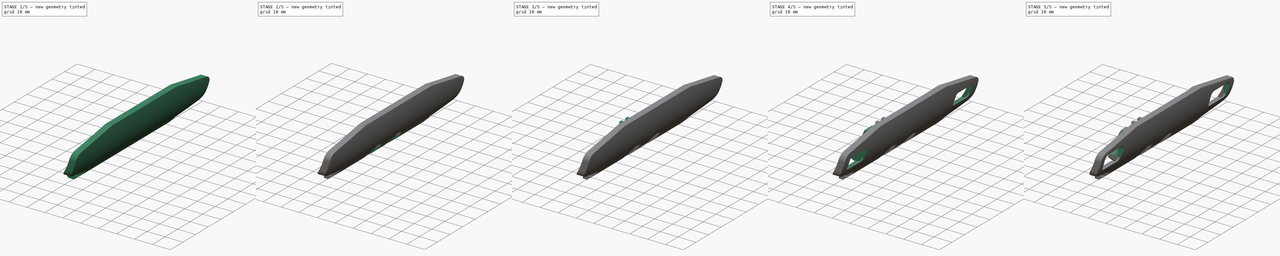
[diagram: build sequence overview — one tinted view per stage of 5, left to right]
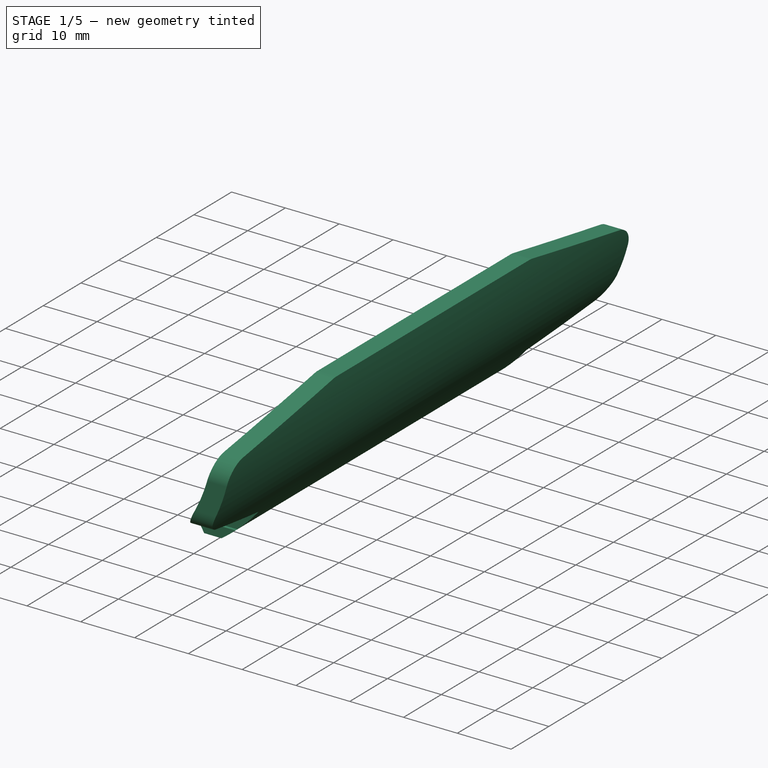
[diagram: stage 1 of 5 — iso view after this stage's code; geometry added in this stage tinted green]
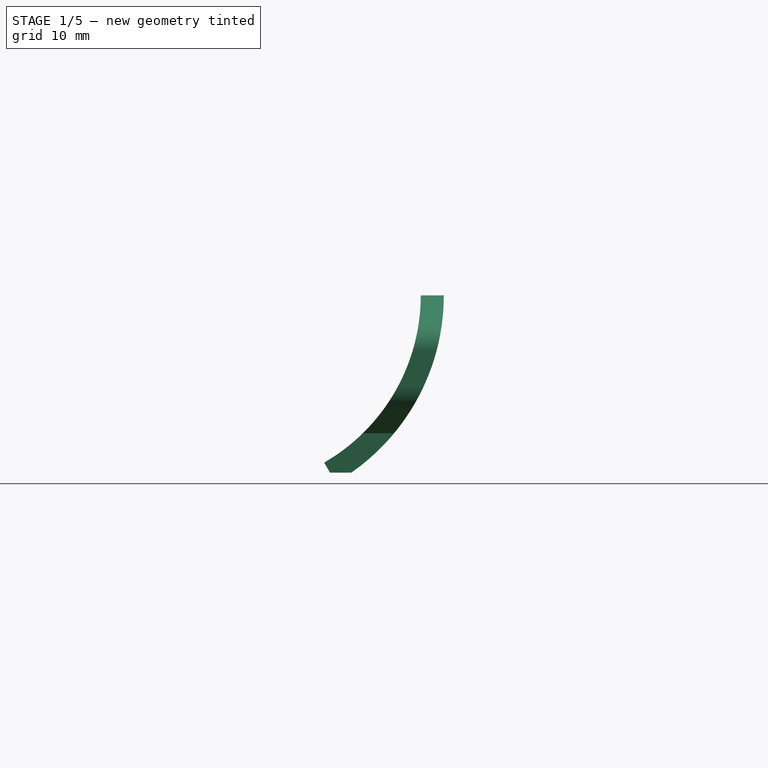
[diagram: stage 1 of 5 — front view after this stage's code; geometry added in this stage tinted green]
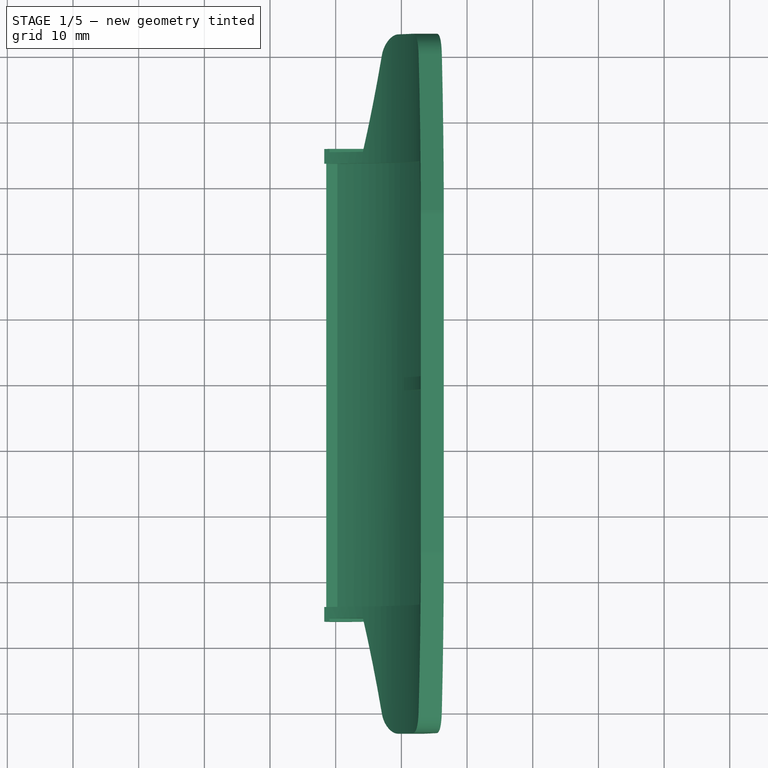
[diagram: stage 1 of 5 — top view after this stage's code; geometry added in this stage tinted green]
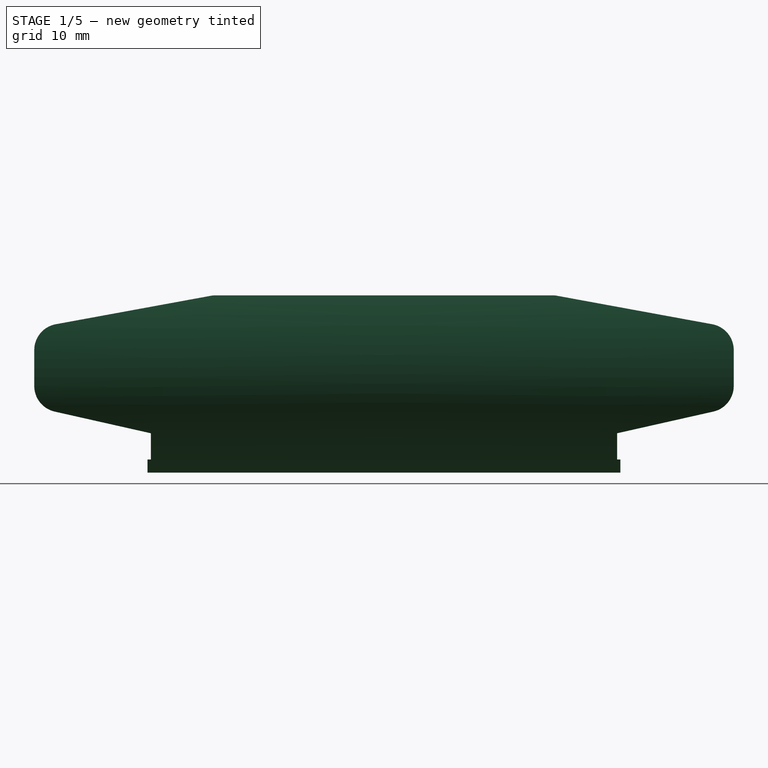
[diagram: stage 1 of 5 — right view after this stage's code; geometry added in this stage tinted green]
FCSTD DOCUMENT  (FreeCAD 0.19R24276 (Git))
Label: Front Bumper
License: All rights reserved
LicenseURL: http://en.wikipedia.org/wiki/All_rights_reserved
objects: Sketcher::SketchObject×20, PartDesign::Pocket×12, PartDesign::Pad×9, PartDesign::Fillet×6, PartDesign::Mirrored×3, PartDesign::Draft×1, PartDesign::Body×1
note: 80 computed .brp shape members not serialized (recipe doc carries the construction recipe); baked Part::Feature solids carry a one-line shape summary decoded from their .brp

FEATURE [Sketcher::SketchObject] Sketch
  FullyConstrained = true
  MapMode = 5
  Placement = pos=(0,0,0) rot=(1,0,0;1.5708rad)
  Support = -> [XZ_Plane]
  sketch-geometry (6):
    g0: ArcOfCircle CenterX=-16.4545 CenterY=21 CenterZ=0 NormalX=0 NormalY=0 NormalZ=1 AngleXU=0 Radius=32.909 StartAngle=5.23599 EndAngle=6.28319
    g1: LineSegment StartX=-16.4545 StartY=21 StartZ=0 EndX=16.4545 EndY=21 EndZ=0
    g2: LineSegment StartX=-16.4545 StartY=21 StartZ=0 EndX=0 EndY=-7.5 EndZ=0
    g3: ArcOfCircle CenterX=-16.4545 CenterY=21 CenterZ=0 NormalX=0 NormalY=0 NormalZ=1 AngleXU=0 Radius=29.409 StartAngle=5.23599 EndAngle=6.28319
    g4: LineSegment StartX=12.9545 StartY=21 StartZ=0 EndX=16.4545 EndY=21 EndZ=0
    g5: LineSegment StartX=-1.75 StartY=-4.46891 StartZ=0 EndX=0 EndY=-7.5 EndZ=0
  constraints (17):
    c: PointOnObject(g0,g-2)
    c: Coincident(g1,g0)
    c: Coincident(g1,g0)
    c: Horizontal(g1)
    c: Coincident(g2,g0)
    c: Coincident(g2,g0)
    c: DistanceY(g0,g-1) = 7.5
    c: DistanceY(g-1,g0) = 21
    c: Angle(g2,g1) = 1.0472
    c: Coincident(g3,g0)
    c: PointOnObject(g3,g2)
    c: PointOnObject(g3,g1)
    c: Coincident(g4,g3)
    c: Coincident(g4,g0)
    c: Coincident(g5,g3)
    c: Coincident(g5,g0)
    c: DistanceX(g3,g0) = 3.5
FEATURE [PartDesign::Pad] Pad
  Direction = (1,1,1)
  Length = 106.5
  Length2 = 100
  Midplane = true
  Placement = pos=(0,0,0) rot=(1,0,0;1.5708rad)
  Profile = -> Sketch
  Type = 0
FEATURE [Sketcher::SketchObject] Sketch001
  ExternalGeometry = -> [Pad]
  FullyConstrained = true
  MapMode = 5
  Placement = pos=(0,0,0) rot=(0.57735,0.57735,0.57735;2.0944rad)
  Support = -> [YZ_Plane]
  sketch-geometry (19):
    g0: LineSegment StartX=26 StartY=21 StartZ=0 EndX=58.25 EndY=21 EndZ=0
    g1: LineSegment StartX=58.25 StartY=21 StartZ=0 EndX=58.25 EndY=-11 EndZ=0
    g2: LineSegment StartX=26 StartY=21 StartZ=0 EndX=53.25 EndY=16 EndZ=0
    g3: LineSegment StartX=53.25 StartY=16 StartZ=0 EndX=53.25 EndY=4 EndZ=0
    g4: LineSegment StartX=53.25 StartY=4 StartZ=0 EndX=35.5 EndY=-3.29e-14 EndZ=0
    g5: LineSegment StartX=35.5 StartY=-3.29e-14 StartZ=0 EndX=35.5 EndY=-4 EndZ=0
    g6: LineSegment StartX=35.5 StartY=-4 StartZ=0 EndX=36 EndY=-4 EndZ=0
    g7: LineSegment StartX=36 StartY=-4 StartZ=0 EndX=36 EndY=-6 EndZ=0
    g8: LineSegment StartX=58.25 StartY=-11 StartZ=0 EndX=-58.25 EndY=-11 EndZ=0
    g9: LineSegment StartX=-58.25 StartY=-11 StartZ=0 EndX=-58.25 EndY=21 EndZ=0
    g10: LineSegment StartX=-58.25 StartY=21 StartZ=0 EndX=-26 EndY=21 EndZ=0
    g11: LineSegment StartX=-26 StartY=21 StartZ=0 EndX=-53.25 EndY=16 EndZ=0
    g12: LineSegment StartX=-53.25 StartY=16 StartZ=0 EndX=-53.25 EndY=4 EndZ=0
    g13: LineSegment StartX=-53.25 StartY=4 StartZ=0 EndX=-35.5 EndY=-3.29e-14 EndZ=0
    g14: LineSegment StartX=-35.5 StartY=-3.29e-14 StartZ=0 EndX=-35.5 EndY=-4 EndZ=0
    g15: LineSegment StartX=-35.5 StartY=-4 StartZ=0 EndX=-36 EndY=-4 EndZ=0
    g16: LineSegment StartX=-36 StartY=-4 StartZ=0 EndX=-36 EndY=-6 EndZ=0
    g17: LineSegment StartX=-36 StartY=-6 StartZ=0 EndX=36 EndY=-6 EndZ=0
    g18: LineSegment StartX=0 StartY=0 StartZ=0 EndX=0 EndY=21 EndZ=0
  constraints (56):
    c: Horizontal(g0)
    c: Coincident(g0,g1)
    c: Vertical(g1)
    c: Coincident(g0,g2)
    c: Vertical(g3)
    c: Coincident(g3,g4)
    c: Coincident(g4,g5)
    c: Vertical(g5)
    c: Coincident(g5,g6)
    c: Horizontal(g6)
    c: Coincident(g6,g7)
    c: Vertical(g7)
    c: Coincident(g1,g8)
    c: Horizontal(g8)
    c: Coincident(g8,g9)
    c: Vertical(g9)
    c: Coincident(g9,g10)
    c: Horizontal(g10)
    c: Coincident(g10,g11)
    c: Coincident(g11,g12)
    c: Coincident(g13,g14)
    c: Vertical(g14)
    c: Coincident(g14,g15)
    c: Horizontal(g15)
    c: Coincident(g15,g16)
    c: Vertical(g16)
    c: Coincident(g16,g17)
    c: Coincident(g17,g7)
    c: Horizontal(g17)
    c: Vertical(g12)
    c: Equal(g2,g11)
    c: Equal(g10,g0)
    c: Equal(g1,g9)
    c: Equal(g12,g3)
    c: Equal(g13,g4)
    c: Equal(g7,g16)
    c: Equal(g15,g6)
    c: Equal(g5,g14)
    c: Coincident(g18,g-1)
    c: PointOnObject(g18,g-2)
    c: Symmetric(g11,g2,g18)
    c: DistanceX(g2,g0) = 5
    c: DistanceX(g16,g7) = 72
    c: DistanceX(g14,g5) = 71
    c: DistanceX(g10,g0) = 52
    c: Tangent(g0,g-3)
    c: Coincident(g2,g3)
    c: PointOnObject(g3,g-4)
    c: DistanceY(g7,g6) = 2
    c: DistanceY(g7,g4) = 6
    c: Coincident(g12,g13)
    c: DistanceY(g1,g7) = 5
    c: DistanceY(g7,g0) = 27
    c: DistanceY(g2,g0) = 5
    c: DistanceY(g7,g3) = 10
    c: PointOnObject(g18,g-3)
FEATURE [PartDesign::Pocket] Pocket
  BaseFeature = -> Pad
  Length = 100
  Length2 = 100
  Midplane = true
  Placement = pos=(0,0,0) rot=(1,0,0;1.5708rad)
  Profile = -> Sketch001
  Reversed = true
  Type = 1
FEATURE [PartDesign::Fillet] Fillet
  Base = -> Pocket [Edge44,Edge43,Edge42,Edge41,Edge40,Edge39]
  BaseFeature = -> Pocket
  Placement = pos=(0,0,0) rot=(1,0,0;1.5708rad)
  Radius = 4
  SupportTransform = false
FEATURE [Sketcher::SketchObject] Sketch002
  ExternalGeometry = -> [Fillet]
  FullyConstrained = true
  MapMode = 5
  Placement = pos=(0,0,0) rot=(0.57735,0.57735,0.57735;2.0944rad)
  Support = -> [YZ_Plane]
  sketch-geometry (11):
    g0: LineSegment StartX=1 StartY=9 StartZ=0 EndX=-1 EndY=9 EndZ=0
    g1: LineSegment StartX=-1 StartY=9 StartZ=0 EndX=-1 EndY=19.5 EndZ=0
    g2: LineSegment StartX=-1 StartY=19.5 StartZ=0 EndX=-23.093 EndY=19.5 EndZ=0
    g3: LineSegment StartX=-23.093 StartY=19.5 StartZ=0 EndX=-33.75 EndY=17.5446 EndZ=0
    g4: LineSegment StartX=-33.75 StartY=17.5446 StartZ=0 EndX=-33.75 EndY=-5 EndZ=0
    g5: LineSegment StartX=-33.75 StartY=-5 StartZ=0 EndX=33.75 EndY=-5 EndZ=0
    g6: LineSegment StartX=1 StartY=9 StartZ=0 EndX=1 EndY=19.5 EndZ=0
    g7: LineSegment StartX=1 StartY=19.5 StartZ=0 EndX=23.093 EndY=19.5 EndZ=0
    g8: LineSegment StartX=23.093 StartY=19.5 StartZ=0 EndX=33.75 EndY=17.5446 EndZ=0
    g9: LineSegment StartX=33.75 StartY=17.5446 StartZ=0 EndX=33.75 EndY=-5 EndZ=0
    g10: LineSegment StartX=0 StartY=0 StartZ=0 EndX=0 EndY=9 EndZ=0
  constraints (32):
    c: Horizontal(g0)
    c: Coincident(g0,g1)
    c: Coincident(g1,g2)
    c: Horizontal(g2)
    c: Coincident(g2,g3)
    c: Coincident(g3,g4)
    c: Coincident(g4,g5)
    c: Horizontal(g5)
    c: Coincident(g6,g0)
    c: Vertical(g6)
    c: Coincident(g7,g6)
    c: Horizontal(g7)
    c: Coincident(g8,g7)
    c: Coincident(g9,g8)
    c: Coincident(g9,g5)
    c: Vertical(g9)
    c: Vertical(g1)
    c: Vertical(g4)
    c: Equal(g7,g2)
    c: Equal(g8,g3)
    c: Equal(g9,g4)
    c: Coincident(g10,g-1)
    c: PointOnObject(g10,g0)
    c: Symmetric(g0,g0,g10)
    c: Equal(g6,g1)
    c: DistanceX(g1,g6) = 2
    c: DistanceX(g-3,g4) = 1.75
    c: DistanceY(g0,g-5) = 12
    c: DistanceY(g7,g-5) = 1.5
    c: Distance(g2,g-6) = 2
    c: Parallel(g3,g-6)
    c: DistanceY(g-4,g4) = 1
FEATURE [PartDesign::Pocket] Pocket001
  BaseFeature = -> Fillet
  Length = 5
  Length2 = 100
  Midplane = true
  Placement = pos=(0,0,0) rot=(1,0,0;1.5708rad)
  Profile = -> Sketch002
  Type = 1
FEATURE [Sketcher::SketchObject] Sketch003
  ExternalGeometry = -> [Pocket001]
  FullyConstrained = false
  MapMode = 5
  Placement = pos=(0,0,0) rot=(1,0,0;1.5708rad)
  Support = -> [XZ_Plane]
  sketch-geometry (5):
    g0: ArcOfCircle CenterX=-16.4545 CenterY=21 CenterZ=0 NormalX=0 NormalY=0 NormalZ=1 AngleXU=0 Radius=32.909 StartAngle=5.37228 EndAngle=6.23759
    g1: LineSegment StartX=16.4203 StartY=19.5 StartZ=0 EndX=14.4181 EndY=19.5 EndZ=0
    g2: ArcOfCircle CenterX=-16.4545 CenterY=21 CenterZ=0 NormalX=0 NormalY=0 NormalZ=1 AngleXU=0 Radius=30.909 StartAngle=5.28372 EndAngle=6.23464
    g3: LineSegment StartX=0.259707 StartY=-5 StartZ=0 EndX=3.71976 EndY=-5 EndZ=0
    g4: LineSegment StartX=10.5921 StartY=6.03851 StartZ=0 EndX=12.3422 EndY=5.07041 EndZ=0
  constraints (13):
    c: Coincident(g0,g-3)
    c: Coincident(g2,g0)
    c: Coincident(g2,g1)
    c: Coincident(g3,g2)
    c: Coincident(g3,g-3)
    c: Horizontal(g3)
    c: Coincident(g0,g1)
    c: Coincident(g0,g3)
    c: Tangent(g-5,g1)
    c: PointOnObject(g4,g2)
    c: PointOnObject(g4,g-3)
    c: PointOnObject(g0,g4)
    c: Distance(g4) = 2
FEATURE [PartDesign::Pad] Pad001
  BaseFeature = -> Pocket001
  Direction = (1,1,1)
  Length = 10
  Length2 = 100
  Placement = pos=(0,0,0) rot=(1,0,0;1.5708rad)
  Profile = -> Sketch003
  Type = 3
  UpToFace = -> Pocket001 [Face18]
FEATURE [PartDesign::Pad] Pad002
  BaseFeature = -> Pad001
  Direction = (1,1,1)
  Length = 10
  Length2 = 100
  Placement = pos=(0,0,0) rot=(1,0,0;1.5708rad)
  Profile = -> Sketch003
  Type = 3
  UpToFace = -> Pad001 [Face26]
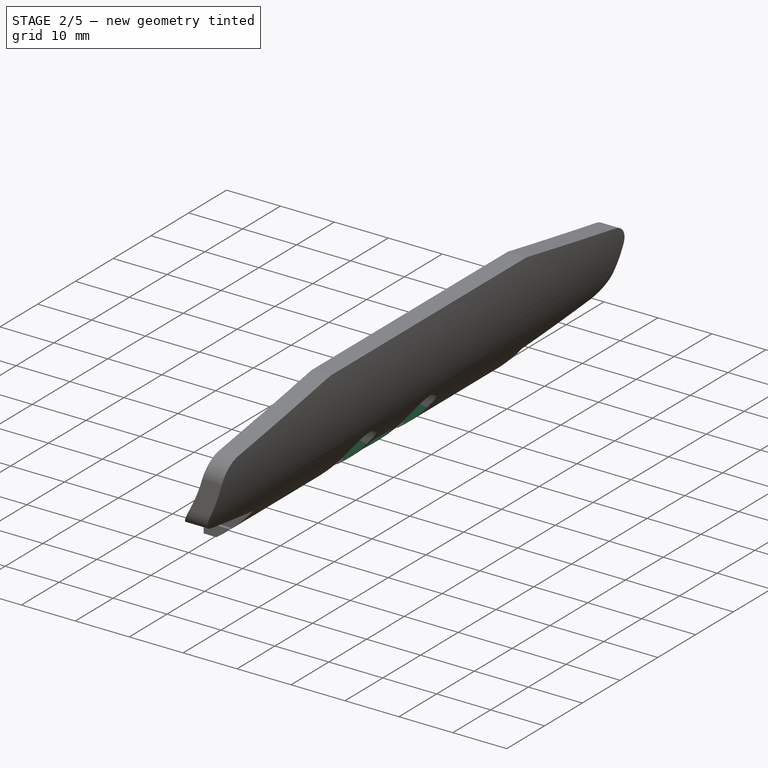
[diagram: stage 2 of 5 — iso view after this stage's code; geometry added in this stage tinted green]
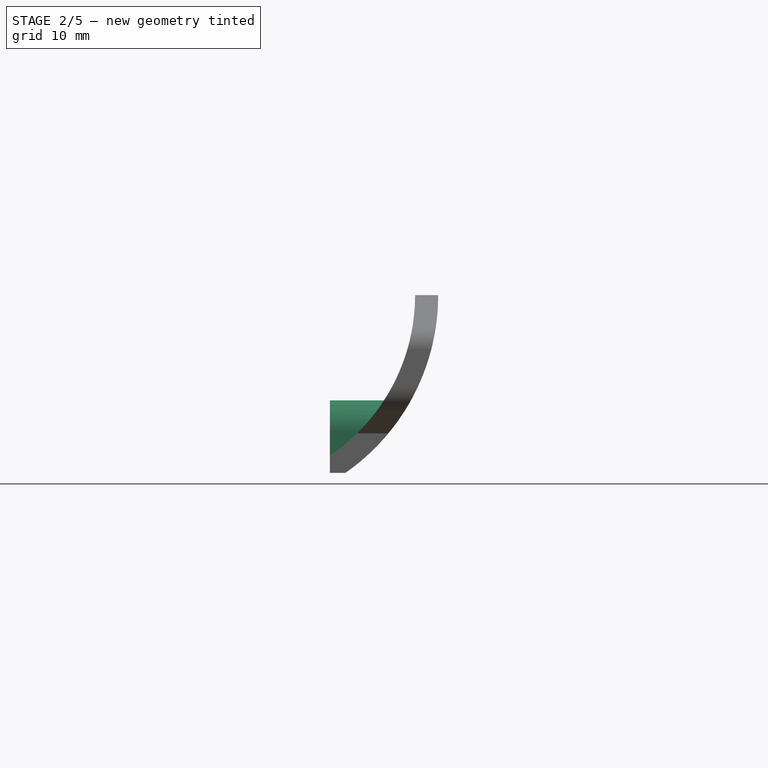
[diagram: stage 2 of 5 — front view after this stage's code; geometry added in this stage tinted green]
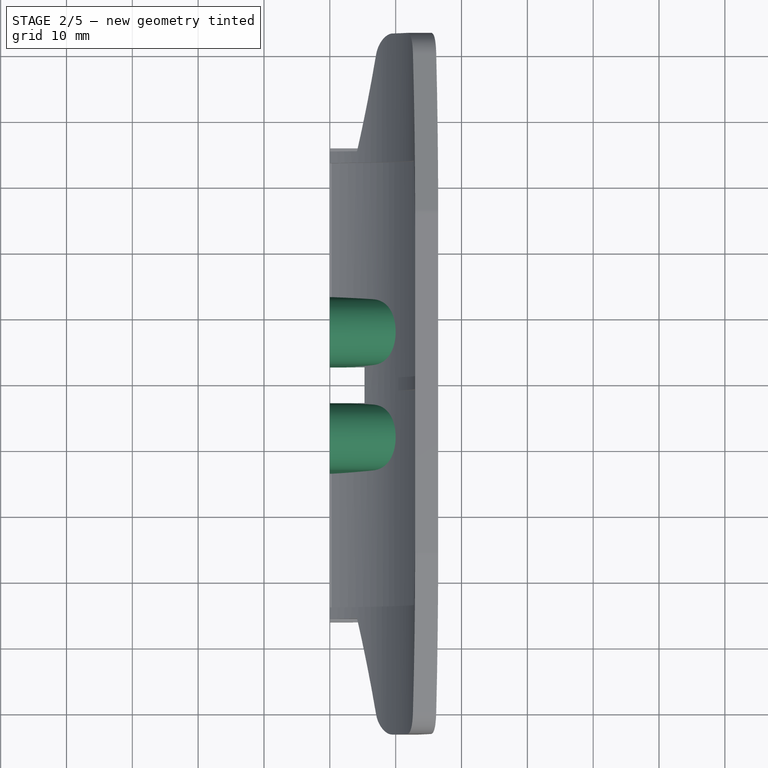
[diagram: stage 2 of 5 — top view after this stage's code; geometry added in this stage tinted green]
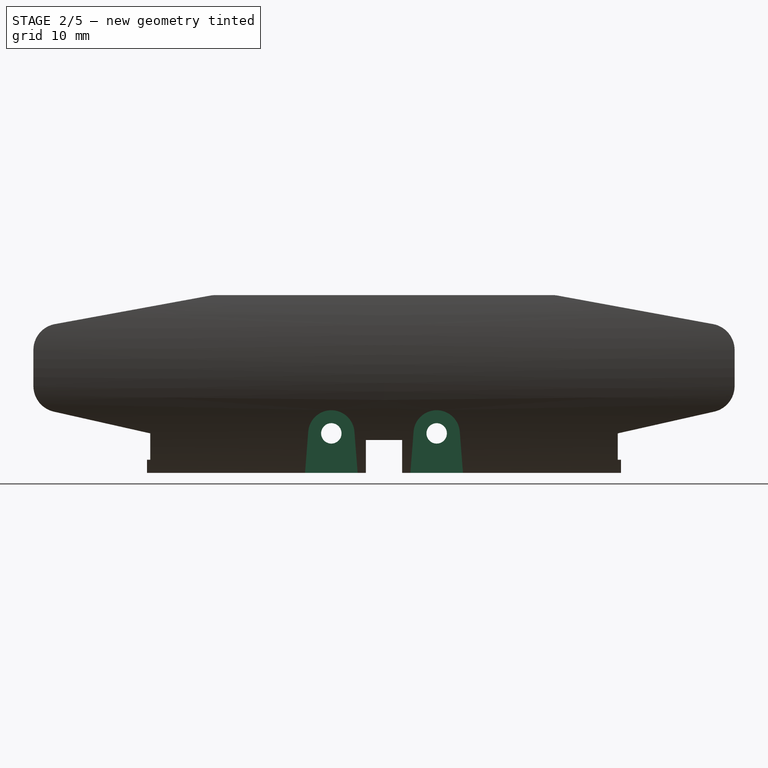
[diagram: stage 2 of 5 — right view after this stage's code; geometry added in this stage tinted green]
FEATURE [Sketcher::SketchObject] Sketch004
  ExternalGeometry = -> [Pad002]
  FullyConstrained = false
  MapMode = 5
  Placement = pos=(0,0,0) rot=(0.57735,0.57735,0.57735;2.0944rad)
  Support = -> [YZ_Plane]
  sketch-geometry (11):
    g0: LineSegment StartX=-3 StartY=0.391165 StartZ=0 EndX=-2.5 EndY=-6 EndZ=0
    g1: LineSegment StartX=-2.5 StartY=-6 StartZ=0 EndX=-13.5 EndY=-6 EndZ=0
    g2: LineSegment StartX=-13.5 StartY=-6 StartZ=0 EndX=-13 EndY=0.391165 EndZ=0
    g3: ArcOfCircle CenterX=-8 CenterY=-6e-16 CenterZ=0 NormalX=0 NormalY=0 NormalZ=1 AngleXU=0 Radius=5.01528 StartAngle=0.078074 EndAngle=3.06352
    g4: LineSegment StartX=0 StartY=0 StartZ=0 EndX=0 EndY=-19.3072 EndZ=0
    g5: LineSegment StartX=3 StartY=0.391165 StartZ=0 EndX=2.5 EndY=-6 EndZ=0
    g6: LineSegment StartX=2.5 StartY=-6 StartZ=0 EndX=13.5 EndY=-6 EndZ=0
    g7: LineSegment StartX=13.5 StartY=-6 StartZ=0 EndX=13 EndY=0.391165 EndZ=0
    g8: ArcOfCircle CenterX=8 CenterY=0 CenterZ=0 NormalX=0 NormalY=0 NormalZ=1 AngleXU=0 Radius=5.01528 StartAngle=0.078074 EndAngle=3.06352
    g9: LineSegment StartX=8 StartY=0 StartZ=0 EndX=8 EndY=-6 EndZ=0
    g10: LineSegment StartX=-8 StartY=-6e-16 StartZ=0 EndX=-8 EndY=-6 EndZ=0
  constraints (26):
    c: Horizontal(g1)
    c: Vertical(g4)
    c: Tangent(g3,g0) = 1.5708
    c: Coincident(g1,g0)
    c: Coincident(g1,g2)
    c: Tangent(g3,g2) = 1.5708
    c: Tangent(g5,g8) = -1.5708
    c: Coincident(g6,g5)
    c: Coincident(g7,g8)
    c: Coincident(g9,g8)
    c: PointOnObject(g9,g6)
    c: Coincident(g10,g3)
    c: PointOnObject(g10,g1)
    c: Vertical(g10)
    c: Symmetric(g5,g0,g4)
    c: Symmetric(g5,g0,g4)
    c: Coincident(g4,g-1)
    c: Symmetric(g2,g7,g4)
    c: Coincident(g6,g7)
    c: Symmetric(g6,g5,g9)
    c: Symmetric(g6,g1,g4)
    c: PointOnObject(g1,g-3)
    c: DistanceX(g6,g6) = 11
    c: DistanceX(g2,g0) = 10
    c: DistanceX(g3,g8) = 16
    c: DistanceY(g-1,g8) = 0
FEATURE [Sketcher::SketchObject] Sketch005
  FullyConstrained = true
  MapMode = 5
  Support = -> [XY_Plane]
  sketch-geometry (4):
    g0: LineSegment StartX=0 StartY=-40 StartZ=0 EndX=-5 EndY=-40 EndZ=0
    g1: LineSegment StartX=-5 StartY=-40 StartZ=0 EndX=-5 EndY=40 EndZ=0
    g2: LineSegment StartX=-5 StartY=40 StartZ=0 EndX=0 EndY=40 EndZ=0
    g3: LineSegment StartX=0 StartY=40 StartZ=0 EndX=0 EndY=-40 EndZ=0
  constraints (11):
    c: Coincident(g0,g1)
    c: Coincident(g1,g2)
    c: Coincident(g2,g3)
    c: Coincident(g3,g0)
    c: Horizontal(g0)
    c: Horizontal(g2)
    c: Vertical(g3)
    c: PointOnObject(g0,g-2)
    c: Symmetric(g1,g0,g-1)
    c: DistanceX(g1,g2) = 5
    c: DistanceY(g1,g1) = 80
FEATURE [PartDesign::Pocket] Pocket002
  BaseFeature = -> Pad002
  Length = 5
  Length2 = 100
  Placement = pos=(0,0,0) rot=(1,0,0;1.5708rad)
  Profile = -> Sketch005
  Type = 1
FEATURE [PartDesign::Pad] Pad003
  BaseFeature = -> Pocket002
  Direction = (1,1,1)
  Length = 10
  Length2 = 100
  Offset = -5
  Placement = pos=(0,0,0) rot=(1,0,0;1.5708rad)
  Profile = -> Sketch004
  Type = 0
FEATURE [Sketcher::SketchObject] Sketch006
  ExternalGeometry = -> [Pad003]
  FullyConstrained = true
  MapMode = 5
  Placement = pos=(0,0,0) rot=(1,0,0;1.5708rad)
  Support = -> [XZ_Plane]
  sketch-geometry (3):
    g0: LineSegment StartX=2.36041 StartY=-6 StartZ=0 EndX=10 EndY=-6 EndZ=0
    g1: LineSegment StartX=10 StartY=-6 StartZ=0 EndX=10 EndY=1.42552 EndZ=0
    g2: ArcOfCircle CenterX=-16.4545 CenterY=21 CenterZ=0 NormalX=0 NormalY=0 NormalZ=1 AngleXU=0 Radius=32.909 StartAngle=5.321 EndAngle=5.64616
  constraints (7):
    c: Coincident(g0,g-5)
    c: Coincident(g0,g-6)
    c: Coincident(g1,g0)
    c: Coincident(g1,g-7)
    c: Coincident(g2,g0)
    c: Coincident(g2,g1)
    c: Tangent(g2,g-4)
FEATURE [PartDesign::Pocket] Pocket003
  BaseFeature = -> Pad003
  Length = 5
  Length2 = 100
  Midplane = true
  Placement = pos=(0,0,0) rot=(1,0,0;1.5708rad)
  Profile = -> Sketch006
  Type = 1
FEATURE [Sketcher::SketchObject] Sketch007
  ExternalGeometry = -> [Pocket003]
  FullyConstrained = true
  MapMode = 5
  Placement = pos=(0,0,0) rot=(0.57735,0.57735,0.57735;2.0944rad)
  Support = -> [YZ_Plane]
  sketch-geometry (8):
    g0: LineSegment StartX=-4.49543 StartY=0.274196 StartZ=0 EndX=-4.00458 EndY=-6 EndZ=0
    g1: LineSegment StartX=-4.00458 StartY=-6 StartZ=0 EndX=-11.9954 EndY=-6 EndZ=0
    g2: LineSegment StartX=-11.9954 StartY=-6 StartZ=0 EndX=-11.5046 EndY=0.274172 EndZ=0
    g3: LineSegment StartX=11.5046 StartY=0.274173 StartZ=0 EndX=11.9954 EndY=-6 EndZ=0
    g4: LineSegment StartX=11.9954 StartY=-6 StartZ=0 EndX=4.00458 EndY=-6 EndZ=0
    g5: LineSegment StartX=4.00458 StartY=-6 StartZ=0 EndX=4.49543 EndY=0.274173 EndZ=0
    g6: ArcOfCircle CenterX=-8 CenterY=6.5e-15 CenterZ=0 NormalX=0 NormalY=0 NormalZ=1 AngleXU=0 Radius=3.51528 StartAngle=0.0780805 EndAngle=3.06352
    g7: ArcOfCircle CenterX=8 CenterY=-7.1e-15 CenterZ=0 NormalX=0 NormalY=0 NormalZ=1 AngleXU=0 Radius=3.51528 StartAngle=0.078074 EndAngle=3.06352
  constraints (22):
    c: Coincident(g0,g1)
    c: Coincident(g1,g2)
    c: Coincident(g3,g4)
    c: Coincident(g4,g5)
    c: Coincident(g6,g0)
    c: Coincident(g6,g2)
    c: Coincident(g7,g5)
    c: Coincident(g7,g3)
    c: Coincident(g-3,g6)
    c: Coincident(g7,g-7)
    c: Tangent(g2,g6)
    c: Tangent(g0,g6)
    c: Tangent(g5,g7)
    c: Tangent(g3,g7)
    c: Tangent(g1,g4)
    c: Tangent(g4,g-9)
    c: Parallel(g-5,g0)
    c: Parallel(g2,g-4)
    c: Parallel(g5,g-6)
    c: Parallel(g3,g-8)
    c: Distance(g3,g-8) = 1.5
    c: Distance(g0,g-5) = 1.5
FEATURE [PartDesign::Pocket] Pocket004
  BaseFeature = -> Pocket003
  Length = 9
  Length2 = 100
  Midplane = true
  Placement = pos=(0,0,0) rot=(1,0,0;1.5708rad)
  Profile = -> Sketch007
  Type = 1
FEATURE [Sketcher::SketchObject] Sketch008
  ExternalGeometry = -> [Pocket004]
  FullyConstrained = true
  MapMode = 5
  Placement = pos=(0,0,0) rot=(0.57735,0.57735,0.57735;2.0944rad)
  Support = -> [YZ_Plane]
  sketch-geometry (10):
    g0: LineSegment StartX=11.5046 StartY=0.274191 StartZ=0 EndX=11.9954 EndY=-6 EndZ=0
    g1: LineSegment StartX=11.9954 StartY=-6 StartZ=0 EndX=4.00458 EndY=-6 EndZ=0
    g2: LineSegment StartX=4.00458 StartY=-6 StartZ=0 EndX=4.49543 EndY=0.274154 EndZ=0
    g3: LineSegment StartX=-4.49543 StartY=0.274196 StartZ=0 EndX=-4.0045 EndY=-6 EndZ=0
    g4: LineSegment StartX=-4.0045 StartY=-6 StartZ=0 EndX=-11.9954 EndY=-6 EndZ=0
    g5: LineSegment StartX=-11.9954 StartY=-6 StartZ=0 EndX=-11.5046 EndY=0.274172 EndZ=0
    g6: ArcOfCircle CenterX=-8 CenterY=0 CenterZ=0 NormalX=0 NormalY=0 NormalZ=1 AngleXU=0 Radius=3.51528 StartAngle=0.0780805 EndAngle=3.06352
    g7: ArcOfCircle CenterX=8 CenterY=-4.4e-15 CenterZ=0 NormalX=0 NormalY=0 NormalZ=1 AngleXU=0 Radius=3.51528 StartAngle=0.0780792 EndAngle=3.06352
    g8: Circle CenterX=8 CenterY=-4.4e-15 CenterZ=0 NormalX=0 NormalY=0 NormalZ=1 AngleXU=0 Radius=1.55
    g9: Circle CenterX=-8 CenterY=0 CenterZ=0 NormalX=0 NormalY=0 NormalZ=1 AngleXU=0 Radius=1.55
  constraints (23):
    c: PointOnObject(g0,g-8)
    c: Coincident(g0,g1)
    c: Coincident(g1,g2)
    c: Coincident(g3,g4)
    c: Coincident(g4,g5)
    c: PointOnObject(g6,g5)
    c: Coincident(g3,g-4)
    c: Coincident(g6,g3)
    c: Tangent(g3,g6)
    c: Tangent(g5,g6)
    c: Coincident(g6,g-4)
    c: Coincident(g-5,g5)
    c: Tangent(g4,g-6)
    c: Coincident(g-8,g7)
    c: Coincident(g7,g2)
    c: Tangent(g1,g-6)
    c: Tangent(g-7,g2)
    c: Coincident(g7,g0)
    c: Tangent(g-9,g0)
    c: Equal(g8,g9)
    c: Radius(g9) = 1.55
    c: Coincident(g8,g7)
    c: Coincident(g9,g6)
FEATURE [PartDesign::Pad] Pad004
  BaseFeature = -> Pocket004
  Direction = (1,1,1)
  Length = 2
  Length2 = 100
  Placement = pos=(0,0,0) rot=(1,0,0;1.5708rad)
  Profile = -> Sketch008
  Type = 0
FEATURE [Sketcher::SketchObject] Sketch009
  ExternalGeometry = -> [Pad004]
  FullyConstrained = true
  MapMode = 5
  Placement = pos=(0,0,0) rot=(0.57735,0.57735,0.57735;2.0944rad)
  Support = -> [YZ_Plane]
  sketch-geometry (4):
    g0: LineSegment StartX=-2.75 StartY=-6 StartZ=0 EndX=2.75 EndY=-6 EndZ=0
    g1: LineSegment StartX=2.75 StartY=-6 StartZ=0 EndX=2.75 EndY=-1 EndZ=0
    g2: LineSegment StartX=2.75 StartY=-1 StartZ=0 EndX=-2.75 EndY=-1 EndZ=0
    g3: LineSegment StartX=-2.75 StartY=-1 StartZ=0 EndX=-2.75 EndY=-6 EndZ=0
  constraints (11):
    c: Coincident(g0,g1)
    c: Coincident(g1,g2)
    c: Coincident(g2,g3)
    c: Coincident(g3,g0)
    c: Horizontal(g2)
    c: Vertical(g1)
    c: Vertical(g3)
    c: Symmetric(g0,g0,g-2)
    c: PointOnObject(g0,g-3)
    c: DistanceY(g3,g3) = 5
    c: DistanceX(g2,g2) = 5.5
FEATURE [PartDesign::Pocket] Pocket005
  BaseFeature = -> Pad004
  Length = 5
  Length2 = 100
  Placement = pos=(0,0,0) rot=(1,0,0;1.5708rad)
  Profile = -> Sketch009
  Reversed = true
  Type = 1
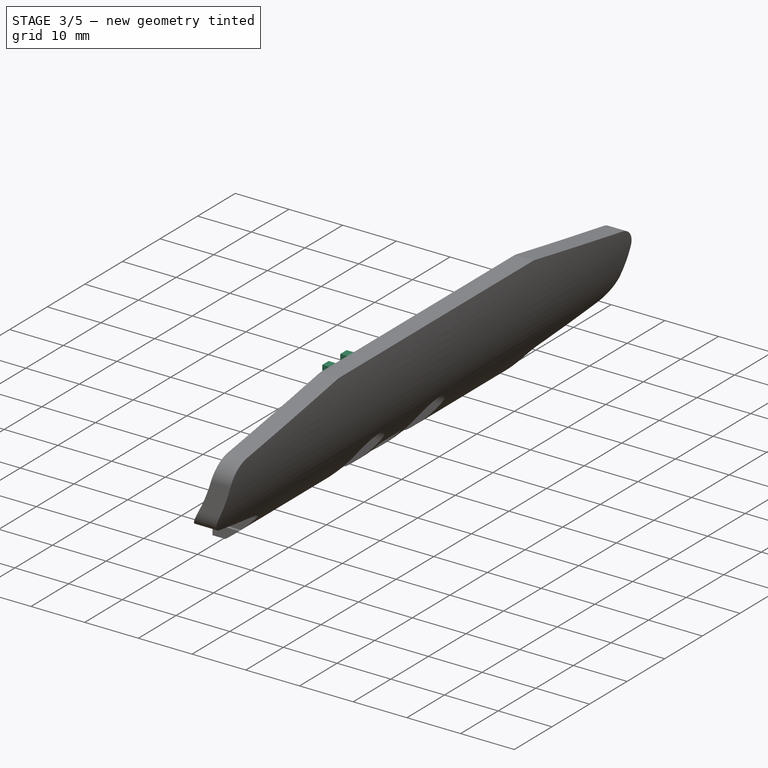
[diagram: stage 3 of 5 — iso view after this stage's code; geometry added in this stage tinted green]
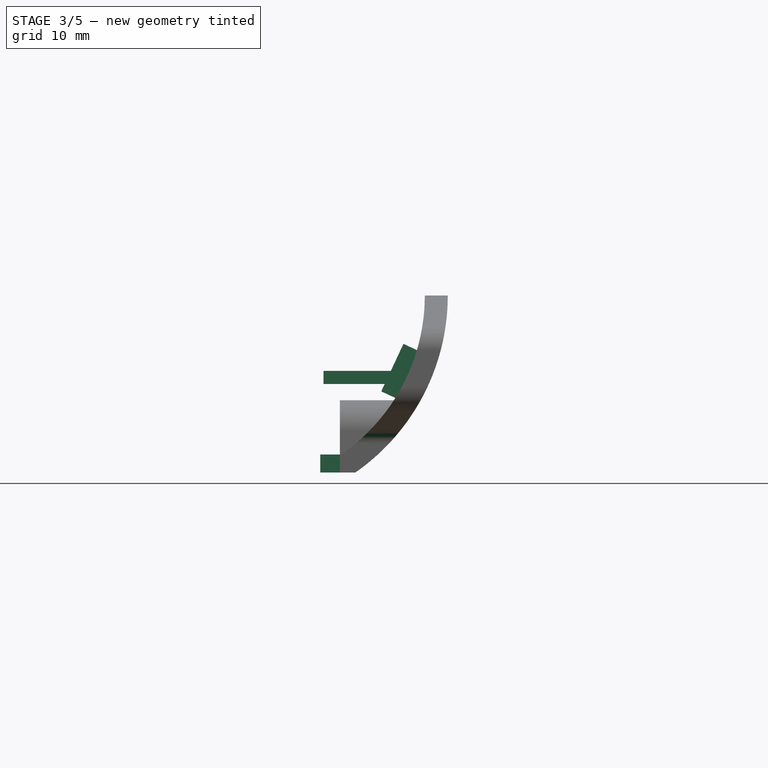
[diagram: stage 3 of 5 — front view after this stage's code; geometry added in this stage tinted green]
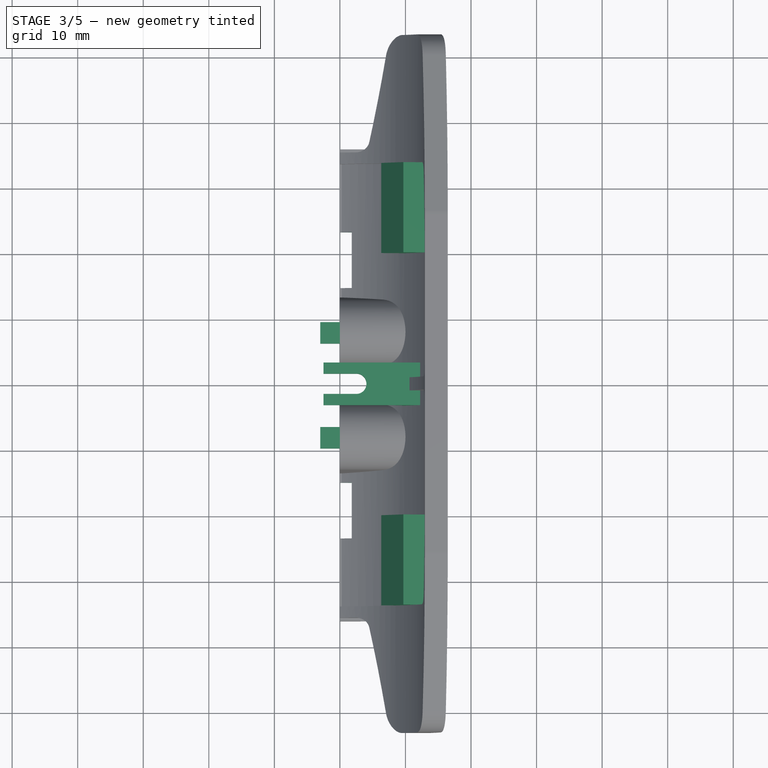
[diagram: stage 3 of 5 — top view after this stage's code; geometry added in this stage tinted green]
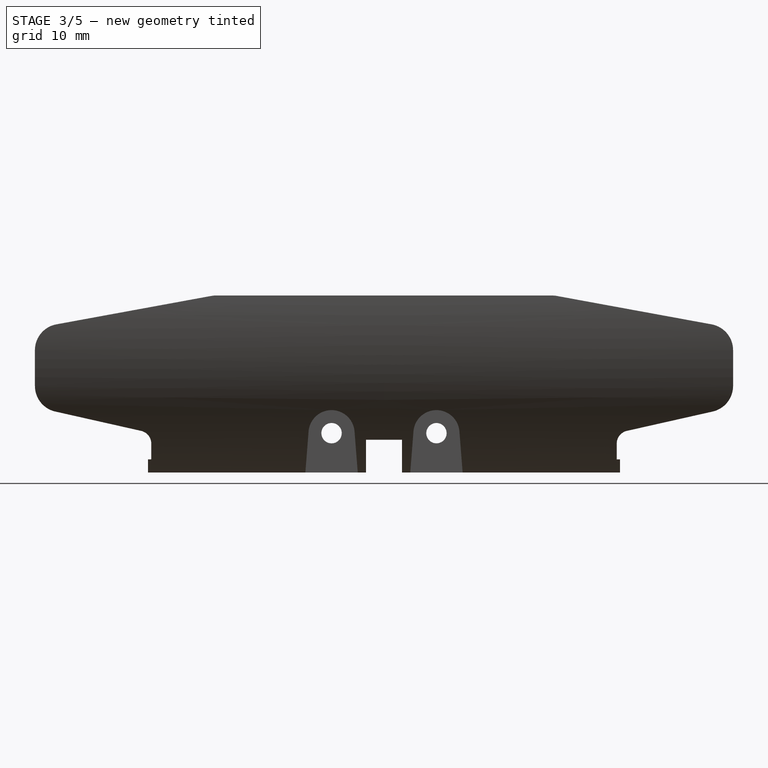
[diagram: stage 3 of 5 — right view after this stage's code; geometry added in this stage tinted green]
FEATURE [Sketcher::SketchObject] Sketch010
  FullyConstrained = true
  MapMode = 5
  Support = -> [XY_Plane]
  sketch-geometry (8):
    g0: LineSegment StartX=0 StartY=14.85 StartZ=0 EndX=1.8 EndY=14.85 EndZ=0
    g1: LineSegment StartX=1.8 StartY=14.85 StartZ=0 EndX=1.8 EndY=23.35 EndZ=0
    g2: LineSegment StartX=1.8 StartY=23.35 StartZ=0 EndX=0 EndY=23.35 EndZ=0
    g3: LineSegment StartX=0 StartY=23.35 StartZ=0 EndX=0 EndY=14.85 EndZ=0
    g4: LineSegment StartX=0 StartY=-14.85 StartZ=0 EndX=1.8 EndY=-14.85 EndZ=0
    g5: LineSegment StartX=1.8 StartY=-14.85 StartZ=0 EndX=1.8 EndY=-23.35 EndZ=0
    g6: LineSegment StartX=1.8 StartY=-23.35 StartZ=0 EndX=0 EndY=-23.35 EndZ=0
    g7: LineSegment StartX=0 StartY=-23.35 StartZ=0 EndX=0 EndY=-14.85 EndZ=0
  constraints (22):
    c: Coincident(g0,g1)
    c: Coincident(g1,g2)
    c: Coincident(g2,g3)
    c: Coincident(g3,g0)
    c: Horizontal(g0)
    c: Horizontal(g2)
    c: Vertical(g3)
    c: PointOnObject(g0,g-2)
    c: Coincident(g4,g5)
    c: Coincident(g5,g6)
    c: Coincident(g6,g7)
    c: Coincident(g7,g4)
    c: Horizontal(g4)
    c: Horizontal(g6)
    c: Vertical(g7)
    c: PointOnObject(g4,g-2)
    c: Tangent(g5,g1)
    c: Symmetric(g4,g0,g-1)
    c: DistanceY(g4,g0) = 29.7
    c: DistanceY(g6,g2) = 46.7
    c: DistanceX(g2,g1) = 1.8
    c: Symmetric(g1,g5,g-1)
FEATURE [PartDesign::Pocket] Pocket006
  BaseFeature = -> Pocket005
  Length = 5
  Length2 = 100
  Placement = pos=(0,0,0) rot=(1,0,0;1.5708rad)
  Profile = -> Sketch010
  Type = 1
FEATURE [Sketcher::SketchObject] Sketch011
  ExternalGeometry = -> [Pocket006]
  FullyConstrained = true
  MapMode = 5
  Placement = pos=(0,0,0) rot=(0.57735,0.57735,0.57735;2.0944rad)
  Support = -> [YZ_Plane]
  sketch-geometry (8):
    g0: LineSegment StartX=-6.375 StartY=-6 StartZ=0 EndX=-9.625 EndY=-6 EndZ=0
    g1: LineSegment StartX=-9.625 StartY=-6 StartZ=0 EndX=-9.625 EndY=-3.25 EndZ=0
    g2: LineSegment StartX=-9.625 StartY=-3.25 StartZ=0 EndX=-6.375 EndY=-3.25 EndZ=0
    g3: LineSegment StartX=-6.375 StartY=-3.25 StartZ=0 EndX=-6.375 EndY=-6 EndZ=0
    g4: LineSegment StartX=6.375 StartY=-6 StartZ=0 EndX=9.625 EndY=-6 EndZ=0
    g5: LineSegment StartX=9.625 StartY=-6 StartZ=0 EndX=9.625 EndY=-3.25 EndZ=0
    g6: LineSegment StartX=9.625 StartY=-3.25 StartZ=0 EndX=6.375 EndY=-3.25 EndZ=0
    g7: LineSegment StartX=6.375 StartY=-3.25 StartZ=0 EndX=6.375 EndY=-6 EndZ=0
  constraints (21):
    c: Coincident(g0,g1)
    c: Coincident(g1,g2)
    c: Coincident(g2,g3)
    c: Coincident(g3,g0)
    c: Horizontal(g2)
    c: Vertical(g1)
    c: Vertical(g3)
    c: Coincident(g4,g5)
    c: Coincident(g5,g6)
    c: Coincident(g6,g7)
    c: Coincident(g7,g4)
    c: Vertical(g5)
    c: Vertical(g7)
    c: Tangent(g2,g6)
    c: Tangent(g4,g0)
    c: Symmetric(g0,g4,g-2)
    c: Symmetric(g0,g4,g-2)
    c: DistanceX(g0,g4) = 12.75
    c: DistanceX(g0,g4) = 19.25
    c: PointOnObject(g0,g-3)
    c: DistanceY(g3,g3) = 2.75
FEATURE [PartDesign::Pad] Pad005
  BaseFeature = -> Pocket006
  Direction = (1,1,1)
  Length = 3
  Length2 = 100
  Placement = pos=(0,0,0) rot=(1,0,0;1.5708rad)
  Profile = -> Sketch011
  Reversed = true
  Type = 0
FEATURE [Sketcher::SketchObject] Sketch012
  ExternalGeometry = -> [Pad005]
  FullyConstrained = true
  MapMode = 5
  Placement = pos=(0,0,0) rot=(1,0,0;1.5708rad)
  Support = -> [XZ_Plane]
  sketch-geometry (6):
    g0: LineSegment StartX=13 StartY=9.5 StartZ=0 EndX=-2.5 EndY=9.5 EndZ=0
    g1: LineSegment StartX=-2.5 StartY=9.5 StartZ=0 EndX=-2.5 EndY=7.5 EndZ=0
    g2: LineSegment StartX=-2.5 StartY=7.5 StartZ=0 EndX=8.00001 EndY=7.5 EndZ=0
    g3: LineSegment StartX=13 StartY=9.5 StartZ=0 EndX=9.5 EndY=3.89883 EndZ=0
    g4: LineSegment StartX=9.5 StartY=3.89883 StartZ=0 EndX=9.5 EndY=6.00001 EndZ=0
    g5: ArcOfCircle CenterX=8 CenterY=6 CenterZ=0 NormalX=0 NormalY=0 NormalZ=1 AngleXU=0 Radius=1.5 StartAngle=6.77249e-06 EndAngle=1.57079
  constraints (19):
    c: Horizontal(g0)
    c: Coincident(g0,g1)
    c: Vertical(g1)
    c: Coincident(g1,g2)
    c: Horizontal(g2)
    c: Coincident(g0,g3)
    c: Coincident(g3,g4)
    c: Vertical(g4)
    c: Coincident(g5,g4)
    c: Coincident(g5,g2)
    c: Tangent(g5,g2)
    c: Tangent(g4,g5)
    c: Angle(g0,g3) = 1.01229
    c: DistanceX(g0,g-1) = 2.5
    c: DistanceY(g1,g1) = 2
    c: DistanceY(g-3,g0) = 15.5
    c: DistanceX(g0,g0) = 15.5
    c: DistanceX(g-1,g3) = 9.5
    c: Radius(g5) = 1.5
FEATURE [PartDesign::Pad] Pad006
  BaseFeature = -> Pad005
  Direction = (1,1,1)
  Length = 6.5
  Length2 = 100
  Midplane = true
  Placement = pos=(0,0,0) rot=(1,0,0;1.5708rad)
  Profile = -> Sketch012
  Type = 0
FEATURE [Sketcher::SketchObject] Sketch013
  ExternalGeometry = -> [Pad006]
  FullyConstrained = true
  MapMode = 5
  Placement = pos=(0,6.3e-15,9.5) rot=(0,0,1;3.14159rad)
  Support = -> [Pad006]
  sketch-geometry (4):
    g0: ArcOfCircle CenterX=-2.5 CenterY=0 CenterZ=0 NormalX=0 NormalY=0 NormalZ=1 AngleXU=0 Radius=1.55 StartAngle=1.5708 EndAngle=4.71239
    g1: ArcOfCircle CenterX=3.5 CenterY=-1e-16 CenterZ=0 NormalX=0 NormalY=0 NormalZ=1 AngleXU=0 Radius=1.55 StartAngle=4.71239 EndAngle=7.85398
    g2: LineSegment StartX=-2.5 StartY=-1.55 StartZ=0 EndX=3.5 EndY=-1.55 EndZ=0
    g3: LineSegment StartX=-2.5 StartY=1.55 StartZ=0 EndX=3.5 EndY=1.55 EndZ=0
  constraints (10):
    c: Tangent(g0,g3) = 1.5708
    c: Tangent(g0,g2) = -1.5708
    c: Tangent(g2,g1) = -1.5708
    c: Tangent(g3,g1) = 1.5708
    c: Horizontal(g2)
    c: Equal(g0,g1)
    c: PointOnObject(g0,g-1)
    c: DistanceX(g0,g-3) = 5
    c: DistanceX(g0,g1) = 6
    c: Radius(g1) = 1.55
FEATURE [PartDesign::Pocket] Pocket007
  BaseFeature = -> Pad006
  Length = 5
  Length2 = 100
  Placement = pos=(0,0,0) rot=(1,0,0;1.5708rad)
  Profile = -> Sketch013
  Type = 2
FEATURE [Sketcher::SketchObject] Sketch014
  FullyConstrained = true
  MapMode = 5
  Placement = pos=(7.5e-15,33.75,-2.023e-13) rot=(1,0,0;1.5708rad)
  Support = -> [Pocket007]
  sketch-geometry (4):
    g0: LineSegment StartX=6.31 StartY=6.375 StartZ=0 EndX=9.69095 EndY=13.6255 EndZ=0
    g1: LineSegment StartX=9.69095 StartY=13.6255 StartZ=0 EndX=13.7693 EndY=11.7237 EndZ=0
    g2: LineSegment StartX=13.7693 StartY=11.7237 StartZ=0 EndX=10.3884 EndY=4.47322 EndZ=0
    g3: LineSegment StartX=10.3884 StartY=4.47322 StartZ=0 EndX=6.31 EndY=6.375 EndZ=0
  constraints (12):
    c: Coincident(g0,g1)
    c: Coincident(g1,g2)
    c: Coincident(g2,g3)
    c: Coincident(g3,g0)
    c: Parallel(g2,g0)
    c: Parallel(g1,g3)
    c: Perpendicular(g0,g1)
    c: Angle(g0,g-2) = 0.436332
    c: Distance(g1) = 4.5
    c: Distance(g2) = 8
    c: DistanceY(g-1,g0) = 6.375
    c: DistanceX(g-1,g0) = 6.31
FEATURE [PartDesign::Pad] Pad007
  BaseFeature = -> Pocket007
  Direction = (1,1,1)
  Length = 13.75
  Length2 = 100
  Placement = pos=(0,0,0) rot=(1,0,0;1.5708rad)
  Profile = -> Sketch014
  Type = 0
FEATURE [PartDesign::Mirrored] Mirrored
  BaseFeature = -> Pad007
  MirrorPlane = -> XZ_Plane
  Originals = -> [Pad007]
  Placement = pos=(0,0,0) rot=(1,0,0;1.5708rad)
FEATURE [PartDesign::Fillet] Fillet001
  Base = -> Mirrored [Edge95,Edge94,Edge77,Edge75,Edge91,Edge68,Edge56,Edge114]
  BaseFeature = -> Mirrored
  Placement = pos=(0,0,0) rot=(1,0,0;1.5708rad)
  Radius = 2
  SupportTransform = false
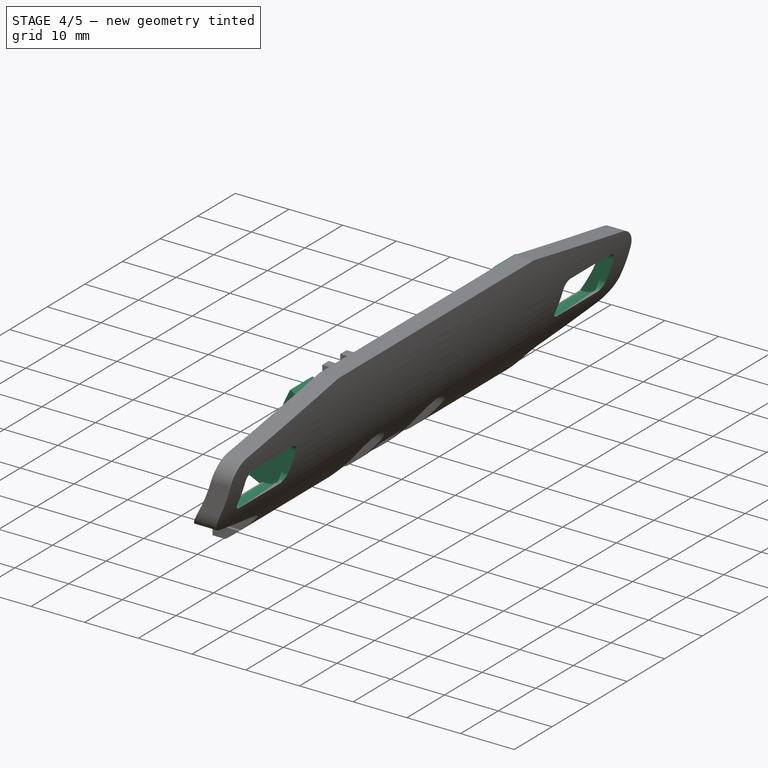
[diagram: stage 4 of 5 — iso view after this stage's code; geometry added in this stage tinted green]
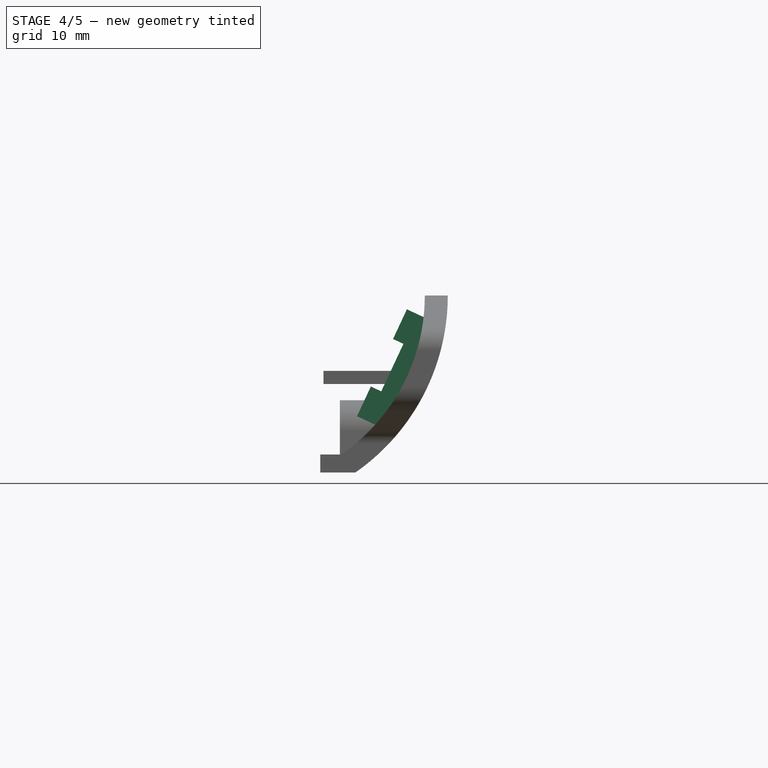
[diagram: stage 4 of 5 — front view after this stage's code; geometry added in this stage tinted green]
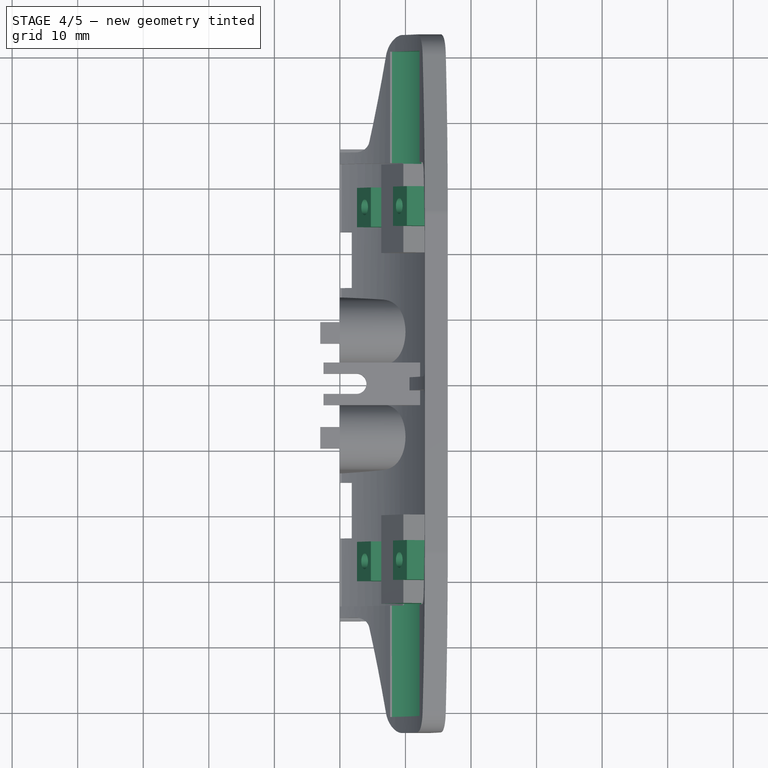
[diagram: stage 4 of 5 — top view after this stage's code; geometry added in this stage tinted green]
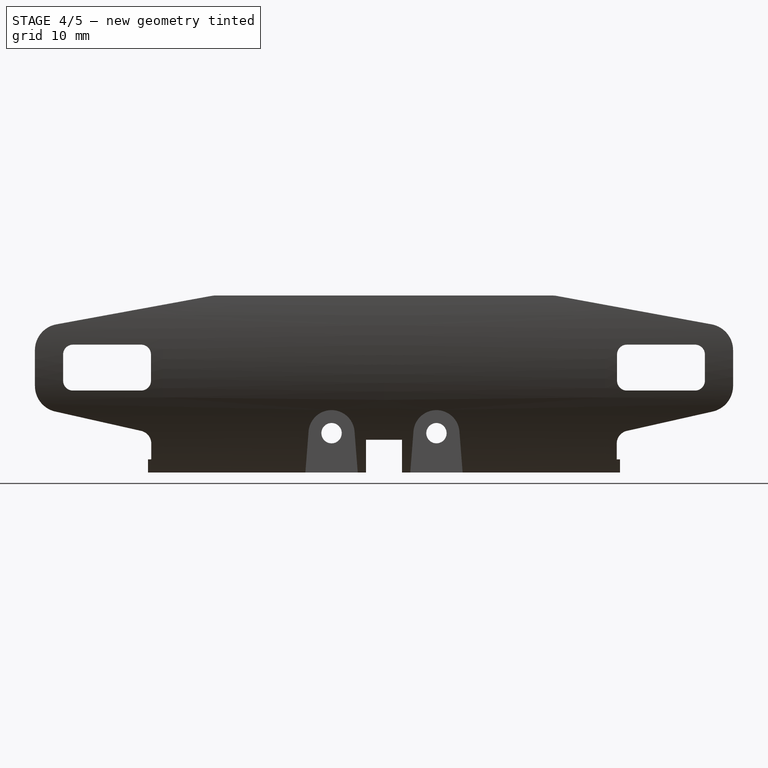
[diagram: stage 4 of 5 — right view after this stage's code; geometry added in this stage tinted green]
FEATURE [Sketcher::SketchObject] Sketch015
  ExternalGeometry = -> [Fillet001]
  FullyConstrained = true
  MapMode = 5
  Placement = pos=(2.74123,7.2e-15,-1.27826) rot=(-0.5373,0,0.843391;3.14159rad)
  Support = -> [Fillet001]
  sketch-geometry (20):
    g0: LineSegment StartX=-21.4444 StartY=30 StartZ=0 EndX=-3.44443 EndY=30 EndZ=0
    g1: LineSegment StartX=-3.44443 StartY=30 StartZ=0 EndX=-3.44443 EndY=24 EndZ=0
    g2: LineSegment StartX=-3.44443 StartY=24 StartZ=0 EndX=-21.4444 EndY=24 EndZ=0
    g3: LineSegment StartX=-21.4444 StartY=24 StartZ=0 EndX=-21.4444 EndY=30 EndZ=0
    g4: LineSegment StartX=-21.4444 StartY=-24 StartZ=0 EndX=-3.44443 EndY=-24 EndZ=0
    g5: LineSegment StartX=-3.44443 StartY=-24 StartZ=0 EndX=-3.44443 EndY=-30 EndZ=0
    g6: LineSegment StartX=-3.44443 StartY=-30 StartZ=0 EndX=-21.4444 EndY=-30 EndZ=0
    g7: LineSegment StartX=-21.4444 StartY=-30 StartZ=0 EndX=-21.4444 EndY=-24 EndZ=0
    g8: LineSegment StartX=-21.4444 StartY=30 StartZ=0 EndX=-16.4444 EndY=30 EndZ=0
    g9: LineSegment StartX=-21.4444 StartY=24 StartZ=0 EndX=-16.4444 EndY=24 EndZ=0
    g10: LineSegment StartX=-16.4444 StartY=30 StartZ=0 EndX=-16.4444 EndY=24 EndZ=0
    g11: LineSegment StartX=-3.44443 StartY=30 StartZ=0 EndX=-8.44443 EndY=30 EndZ=0
    g12: LineSegment StartX=-3.44443 StartY=24 StartZ=0 EndX=-8.44443 EndY=24 EndZ=0
    g13: LineSegment StartX=-8.44443 StartY=24 StartZ=0 EndX=-8.44443 EndY=30 EndZ=0
    g14: LineSegment StartX=-3.44443 StartY=-30 StartZ=0 EndX=-8.44443 EndY=-30 EndZ=0
    g15: LineSegment StartX=-8.44443 StartY=-30 StartZ=0 EndX=-8.44443 EndY=-24 EndZ=0
    g16: LineSegment StartX=-21.4444 StartY=-24 StartZ=0 EndX=-16.4444 EndY=-24 EndZ=0
    g17: LineSegment StartX=-21.4444 StartY=-30 StartZ=0 EndX=-16.4444 EndY=-30 EndZ=0
    g18: LineSegment StartX=-16.4444 StartY=-24 StartZ=0 EndX=-16.4444 EndY=-30 EndZ=0
    g19: LineSegment StartX=-8.44443 StartY=-24 StartZ=0 EndX=-3.44443 EndY=-24 EndZ=0
  constraints (54):
    c: Coincident(g0,g1)
    c: Coincident(g1,g2)
    c: Coincident(g2,g3)
    c: Coincident(g3,g0)
    c: Horizontal(g0)
    c: Horizontal(g2)
    c: Vertical(g3)
    c: Coincident(g4,g5)
    c: Coincident(g5,g6)
    c: Coincident(g6,g7)
    c: Coincident(g7,g4)
    c: Horizontal(g4)
    c: Horizontal(g6)
    c: Tangent(g1,g5)
    c: Tangent(g3,g7)
    c: Symmetric(g1,g4,g-1)
    c: Symmetric(g0,g5,g-1)
    c: DistanceX(g0,g0) = 18
    c: DistanceY(g4,g1) = 48
    c: DistanceY(g1,g1) = 6
    c: DistanceX(g-3,g1) = 5
    c: DistanceX(g2,g-3) = 5
    c: Coincident(g3,g8)
    c: PointOnObject(g8,g-6)
    c: Horizontal(g8)
    c: Coincident(g3,g9)
    c: PointOnObject(g9,g2)
    c: PointOnObject(g9,g-6)
    c: Coincident(g10,g8)
    c: Coincident(g10,g9)
    c: Coincident(g11,g1)
    c: Coincident(g12,g1)
    c: Coincident(g13,g12)
    c: Coincident(g13,g11)
    c: Vertical(g13)
    c: Coincident(g14,g5)
    c: PointOnObject(g14,g-5)
    c: Coincident(g15,g14)
    c: Vertical(g15)
    c: Coincident(g16,g7)
    c: PointOnObject(g16,g-4)
    c: Coincident(g17,g7)
    c: PointOnObject(g17,g-4)
    c: Coincident(g18,g16)
    c: Coincident(g18,g17)
    c: Horizontal(g16)
    c: Horizontal(g17)
    c: Horizontal(g14)
    c: Coincident(g19,g15)
    c: Coincident(g19,g5)
    c: Horizontal(g19)
    c: PointOnObject(g11,g-7)
    c: Horizontal(g12)
    c: Horizontal(g11)
FEATURE [PartDesign::Pad] Pad008
  BaseFeature = -> Fillet001
  Direction = (1,1,1)
  Length = 1.75
  Length2 = 4
  Placement = pos=(0,0,0) rot=(1,0,0;1.5708rad)
  Profile = -> Sketch015
  Reversed = true
  Type = 4
FEATURE [Sketcher::SketchObject] Sketch016
  ExternalGeometry = -> [Pad008]
  FullyConstrained = true
  MapMode = 5
  Placement = pos=(1.15519,2.9e-15,-0.538674) rot=(-0.5373,0,0.843391;3.14159rad)
  Support = -> [Pad008]
  sketch-geometry (10):
    g0: LineSegment StartX=-21.4444 StartY=30 StartZ=0 EndX=-16.4444 EndY=24 EndZ=0
    g1: LineSegment StartX=-21.4444 StartY=24 StartZ=0 EndX=-16.4444 EndY=30 EndZ=0
    g2: LineSegment StartX=-8.44443 StartY=30 StartZ=0 EndX=-3.44443 EndY=24 EndZ=0
    g3: LineSegment StartX=-3.44443 StartY=30 StartZ=0 EndX=-8.44443 EndY=24 EndZ=0
    g4: Circle CenterX=-18.6944 CenterY=27 CenterZ=0 NormalX=0 NormalY=0 NormalZ=1 AngleXU=0 Radius=1.2
    g5: Circle CenterX=-6.19443 CenterY=27 CenterZ=0 NormalX=0 NormalY=0 NormalZ=1 AngleXU=0 Radius=1.2
    g6: Circle CenterX=-18.6944 CenterY=-27 CenterZ=0 NormalX=0 NormalY=0 NormalZ=1 AngleXU=0 Radius=1.2
    g7: Circle CenterX=-6.19443 CenterY=-27 CenterZ=0 NormalX=0 NormalY=0 NormalZ=1 AngleXU=0 Radius=1.2
    g8: LineSegment StartX=-18.6944 StartY=27 StartZ=0 EndX=-18.9444 EndY=27 EndZ=0
    g9: LineSegment StartX=-6.19443 StartY=27 StartZ=0 EndX=-5.94443 EndY=27 EndZ=0
  constraints (24):
    c: Coincident(g0,g-5)
    c: Coincident(g0,g-6)
    c: Coincident(g1,g-4)
    c: Coincident(g1,g-6)
    c: Coincident(g2,g-10)
    c: Coincident(g2,g-9)
    c: Coincident(g3,g-9)
    c: Coincident(g3,g-10)
    c: Equal(g5,g4)
    c: Diameter(g4) = 2.4
    c: Equal(g7,g6)
    c: Equal(g6,g4)
    c: Symmetric(g4,g6,g-1)
    c: Symmetric(g7,g5,g-1)
    c: Coincident(g8,g4)
    c: Coincident(g9,g5)
    c: PointOnObject(g8,g1)
    c: PointOnObject(g8,g0)
    c: PointOnObject(g9,g3)
    c: PointOnObject(g9,g2)
    c: Horizontal(g8)
    c: Horizontal(g9)
    c: Equal(g8,g9)
    c: DistanceX(g4,g5) = 12.5
FEATURE [PartDesign::Pocket] Pocket008
  BaseFeature = -> Pad008
  Length = 6
  Length2 = 100
  Placement = pos=(0,0,0) rot=(1,0,0;1.5708rad)
  Profile = -> Sketch016
  Type = 0
FEATURE [Sketcher::SketchObject] Sketch017
  FullyConstrained = true
  MapMode = 5
  Placement = pos=(-2.77e-14,33.75,-2.305e-13) rot=(-1,0,0;1.5708rad)
  Support = -> [Pocket008]
  sketch-geometry (2):
    g0: LineSegment StartX=12.4499 StartY=-6.2025 StartZ=0 EndX=12.4499 EndY=-13.7975 EndZ=0
    g1: ArcOfCircle CenterX=8 CenterY=-10 CenterZ=0 NormalX=0 NormalY=0 NormalZ=1 AngleXU=0 Radius=5.85 StartAngle=0.70646 EndAngle=5.57673
  constraints (7):
    c: Vertical(g0)
    c: Coincident(g1,g0)
    c: Coincident(g1,g0)
    c: Radius(g1) = 5.85
    c: DistanceY(g0,g0) = 7.595
    c: DistanceY(g1,g-1) = 10
    c: DistanceX(g-1,g1) = 8
FEATURE [PartDesign::Pocket] Pocket009
  BaseFeature = -> Pocket008
  Length = 0.25
  Length2 = 17
  Placement = pos=(0,0,0) rot=(1,0,0;1.5708rad)
  Profile = -> Sketch017
  Reversed = true
  Type = 4
FEATURE [PartDesign::Mirrored] Mirrored001
  BaseFeature = -> Pocket009
  MirrorPlane = -> XZ_Plane
  Originals = -> [Pocket009]
  Placement = pos=(0,0,0) rot=(1,0,0;1.5708rad)
FEATURE [Sketcher::SketchObject] Sketch018
  ExternalGeometry = -> [Mirrored001]
  FullyConstrained = true
  MapMode = 5
  Placement = pos=(12.4499,1.02e-14,0) rot=(-0.707107,0,0.707107;3.14159rad)
  Support = -> [Mirrored001]
  sketch-geometry (10):
    g0: LineSegment StartX=-6.5 StartY=-48.95 StartZ=0 EndX=-13.5 EndY=-48.95 EndZ=0
    g1: LineSegment StartX=-13.5 StartY=-48.95 StartZ=0 EndX=-13.5 EndY=-35.55 EndZ=0
    g2: LineSegment StartX=-13.5 StartY=-35.55 StartZ=0 EndX=-6.5 EndY=-35.55 EndZ=0
    g3: LineSegment StartX=-6.5 StartY=-35.55 StartZ=0 EndX=-6.5 EndY=-48.95 EndZ=0
    g4: LineSegment StartX=-6.5 StartY=35.55 StartZ=0 EndX=-13.5 EndY=35.55 EndZ=0
    g5: LineSegment StartX=-13.5 StartY=35.55 StartZ=0 EndX=-13.5 EndY=48.95 EndZ=0
    g6: LineSegment StartX=-13.5 StartY=48.95 StartZ=0 EndX=-6.5 EndY=48.95 EndZ=0
    g7: LineSegment StartX=-6.5 StartY=48.95 StartZ=0 EndX=-6.5 EndY=35.55 EndZ=0
    g8: LineSegment StartX=-13.7975 StartY=-50.75 StartZ=0 EndX=-13.5 EndY=-48.95 EndZ=0
    g9: LineSegment StartX=-6.2025 StartY=-50.75 StartZ=0 EndX=-6.5 EndY=-48.95 EndZ=0
  constraints (26):
    c: Coincident(g0,g1)
    c: Coincident(g1,g2)
    c: Coincident(g2,g3)
    c: Coincident(g3,g0)
    c: Horizontal(g0)
    c: Horizontal(g2)
    c: Vertical(g1)
    c: Vertical(g3)
    c: Coincident(g4,g5)
    c: Coincident(g5,g6)
    c: Coincident(g6,g7)
    c: Coincident(g7,g4)
    c: Horizontal(g4)
    c: Horizontal(g6)
    c: Vertical(g5)
    c: Vertical(g7)
    c: Symmetric(g1,g4,g-1)
    c: Symmetric(g6,g0,g-1)
    c: DistanceX(g0,g0) = 7
    c: DistanceY(g-4,g0) = 1.8
    c: DistanceY(g1,g-3) = 1.8
    c: Coincident(g8,g-6)
    c: Coincident(g8,g0)
    c: Coincident(g9,g0)
    c: Coincident(g9,g-7)
    c: Equal(g9,g8)
FEATURE [PartDesign::Pocket] Pocket010
  BaseFeature = -> Mirrored001
  Length = 5
  Length2 = 100
  Placement = pos=(0,0,0) rot=(1,0,0;1.5708rad)
  Profile = -> Sketch018
  Type = 1
FEATURE [PartDesign::Fillet] Fillet002
  Base = -> Pocket010 [Edge358,Edge356,Edge357,Edge359,Edge404,Edge405,Edge406,Edge403]
  BaseFeature = -> Pocket010
  Placement = pos=(0,0,0) rot=(1,0,0;1.5708rad)
  Radius = 1.5
  SupportTransform = false
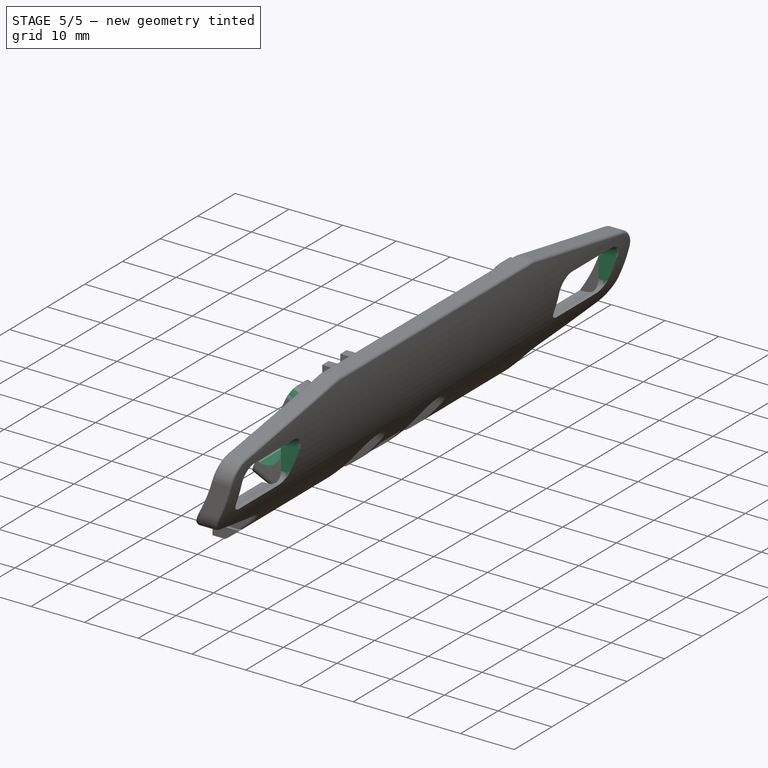
[diagram: stage 5 of 5 — iso view after this stage's code; geometry added in this stage tinted green]
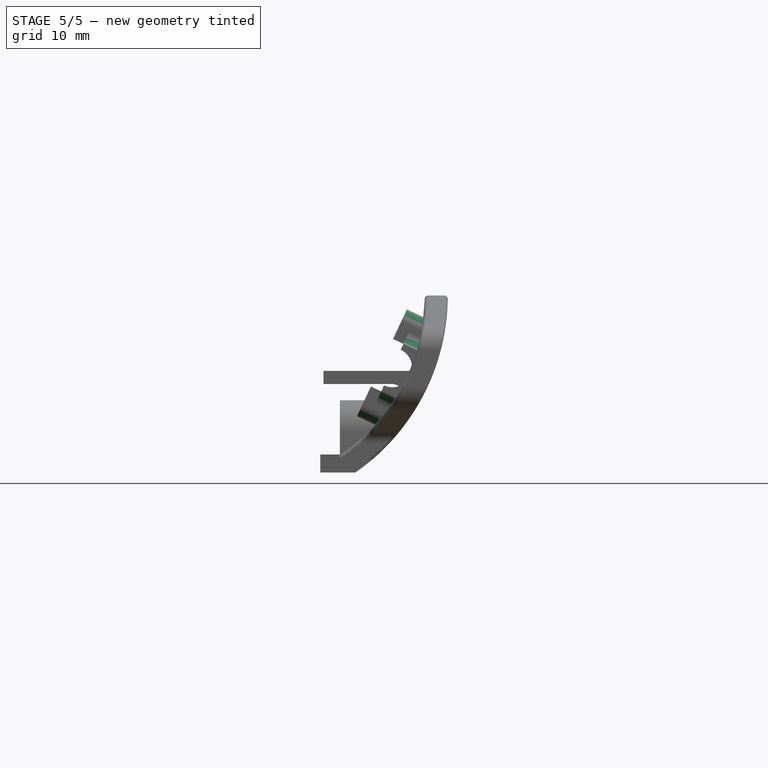
[diagram: stage 5 of 5 — front view after this stage's code; geometry added in this stage tinted green]
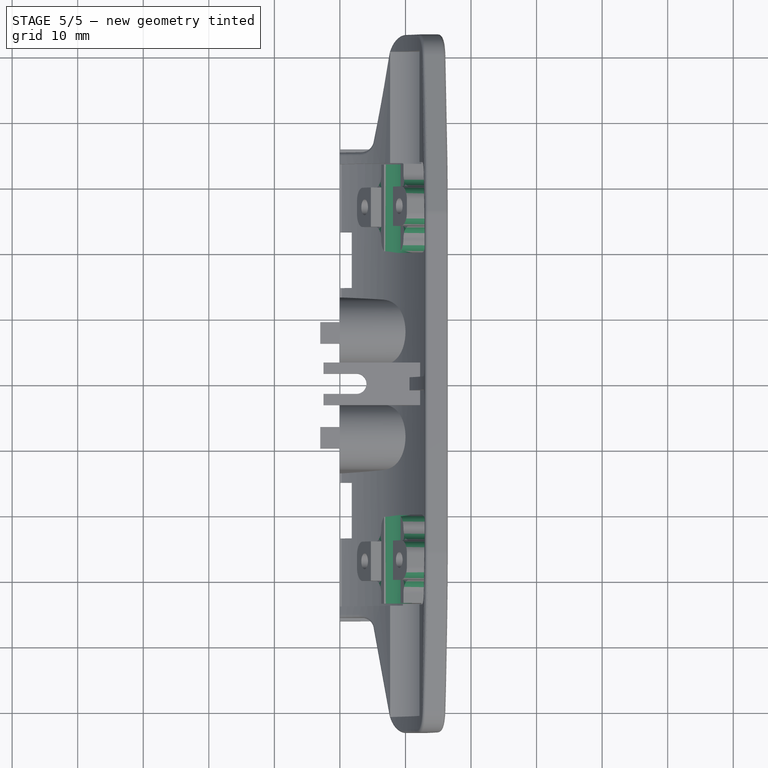
[diagram: stage 5 of 5 — top view after this stage's code; geometry added in this stage tinted green]
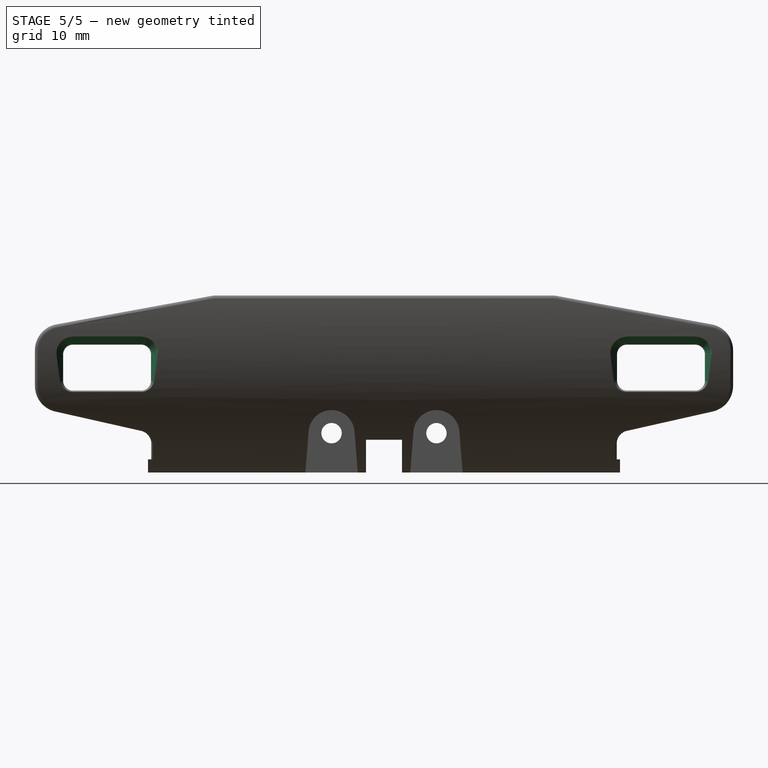
[diagram: stage 5 of 5 — right view after this stage's code; geometry added in this stage tinted green]
FEATURE [Sketcher::SketchObject] Sketch019
  FullyConstrained = true
  MapMode = 5
  Placement = pos=(-1.4e-14,-33.5,-1.776e-13) rot=(1,0,0;1.5708rad)
  Support = -> [Fillet002]
  sketch-geometry (1):
    g0: Circle CenterX=8 CenterY=10 CenterZ=0 NormalX=0 NormalY=0 NormalZ=1 AngleXU=0 Radius=3
  constraints (3):
    c: Diameter(g0) = 6
    c: DistanceX(g-1,g0) = 8
    c: DistanceY(g0) = 10
FEATURE [PartDesign::Pocket] Pocket011
  BaseFeature = -> Fillet002
  Length = 0
  Length2 = 100
  Placement = pos=(0,0,0) rot=(1,0,0;1.5708rad)
  Profile = -> Sketch019
  Type = 3
  UpToFace = -> Fillet002 [Face80]
FEATURE [PartDesign::Mirrored] Mirrored002
  BaseFeature = -> Pocket011
  MirrorPlane = -> XZ_Plane
  Originals = -> [Pocket011]
  Placement = pos=(0,0,0) rot=(1,0,0;1.5708rad)
FEATURE [PartDesign::Draft] Draft
  Angle = 20
  Base = -> Mirrored002 [Face51,Face6]
  BaseFeature = -> Mirrored002
  NeutralPlane = -> Mirrored002 [Face120]
  Placement = pos=(0,0,0) rot=(1,0,0;1.5708rad)
  PullDirection = -> Mirrored002 [Edge235]
  SupportTransform = false
FEATURE [PartDesign::Fillet] Fillet003
  Base = -> Draft [Edge58,Edge116]
  BaseFeature = -> Draft
  Placement = pos=(0,0,0) rot=(1,0,0;1.5708rad)
  Radius = 0.5
  SupportTransform = false
FEATURE [PartDesign::Fillet] Fillet004
  Base = -> Fillet003 [Edge390,Edge391,Edge393,Edge405,Edge403,Edge408,Edge410,Edge280,Edge321,Edge323,Edge324,Edge317,Edge306,Edge307,Edge304,Edge189]
  BaseFeature = -> Fillet003
  Placement = pos=(0,0,0) rot=(1,0,0;1.5708rad)
  Radius = 2
  SupportTransform = false
FEATURE [PartDesign::Fillet] Fillet005
  Base = -> Fillet004 [Edge85,Edge101,Edge305,Edge299]
  BaseFeature = -> Fillet004
  Placement = pos=(0,0,0) rot=(1,0,0;1.5708rad)
  Radius = 1.99
  SupportTransform = false
FEATURE [PartDesign::Body] Body
  Group = -> [Sketch,Pad,Sketch001,Pocket,Fillet,Sketch002,Pocket001,Sketch003,Pad001,Pad002,Sketch004,Sketch005,Pocket002,Pad003,Sketch006,Pocket003,Sketch007,Pocket004,Sketch008,Pad004,Sketch009,Pocket005,Sketch010,Pocket006,Sketch011,Pad005,Sketch012,Pad006,Sketch013,Pocket007,Sketch014,Pad007,Mirrored,Fillet001,Sketch015,Pad008,Sketch016,Pocket008,Sketch017,Pocket009,Mirrored001,Sketch018,Pocket010,+8 more]
  Origin = -> Origin
  Tip = -> Fillet005
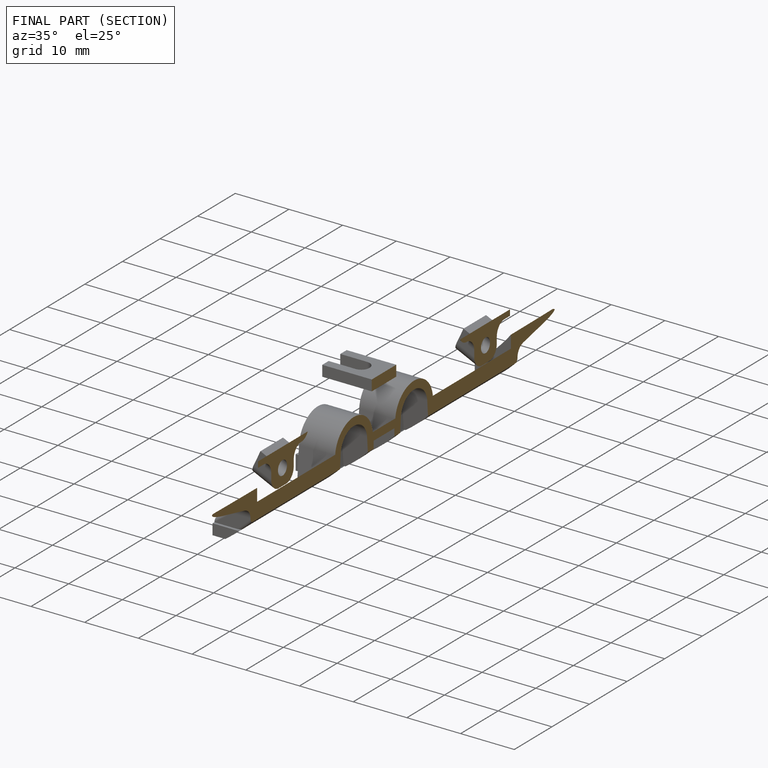
[diagram: finished part — half-section view (interior)]
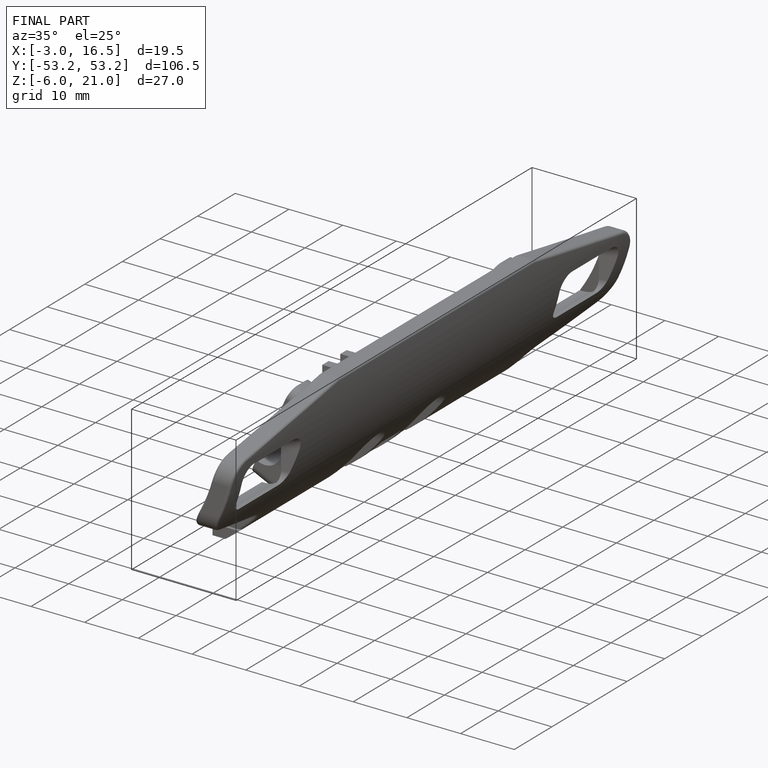
[diagram: finished part — iso view with bounding-box wireframe]
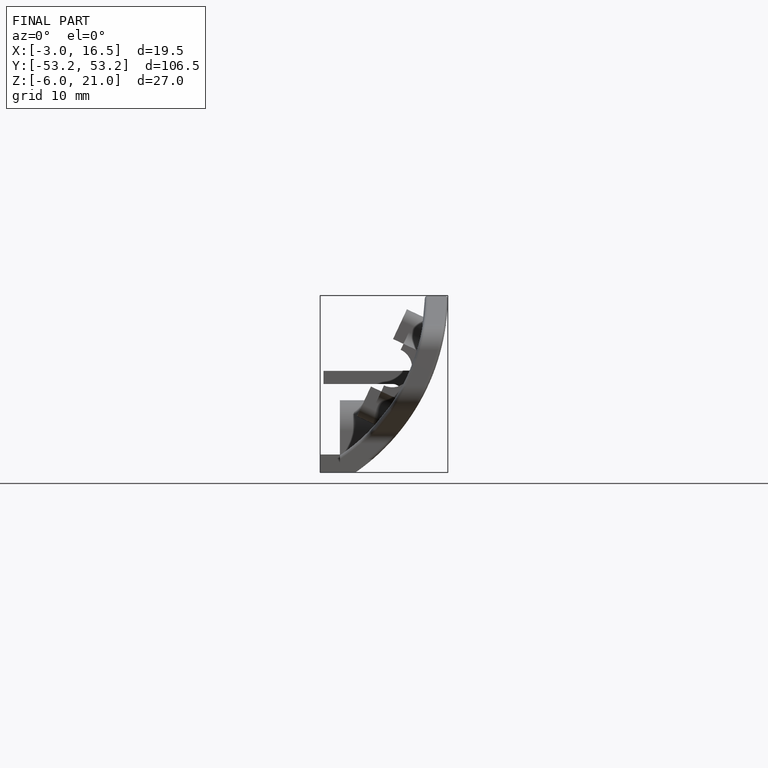
[diagram: finished part — front view with bounding-box wireframe]
